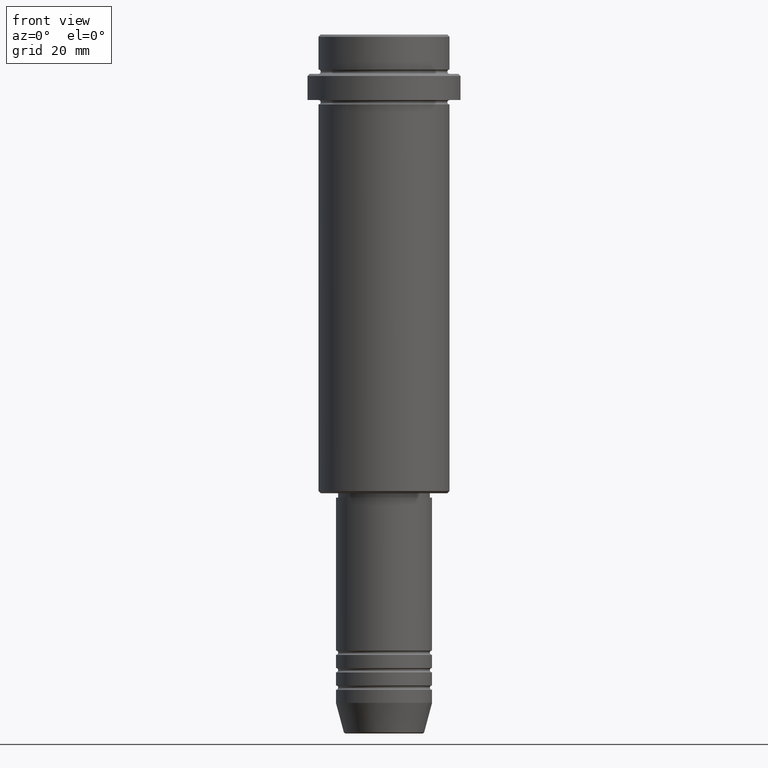
[diagram: clean part render]
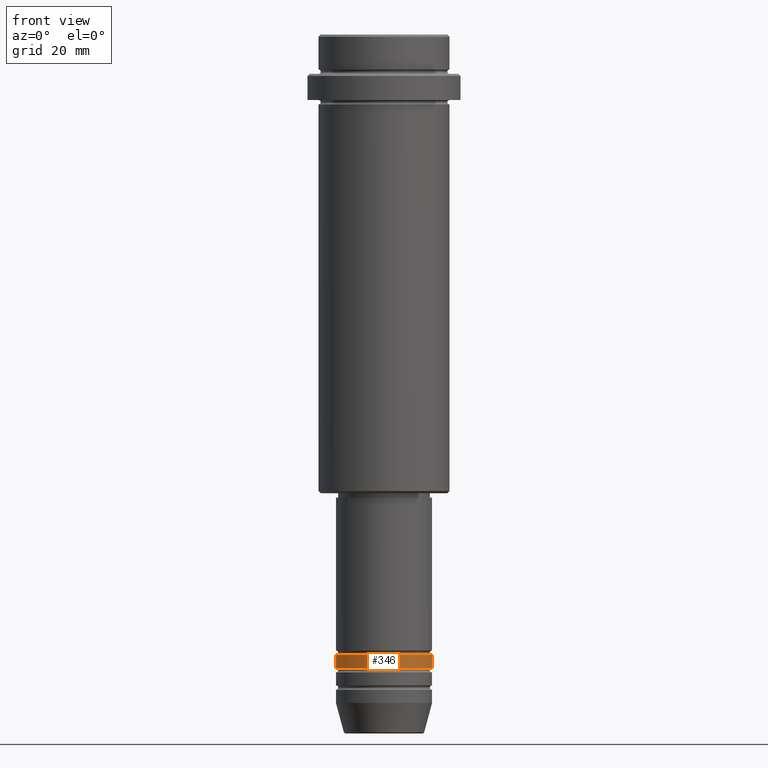
[diagram: same view with one face highlighted and labeled with its STEP entity id]
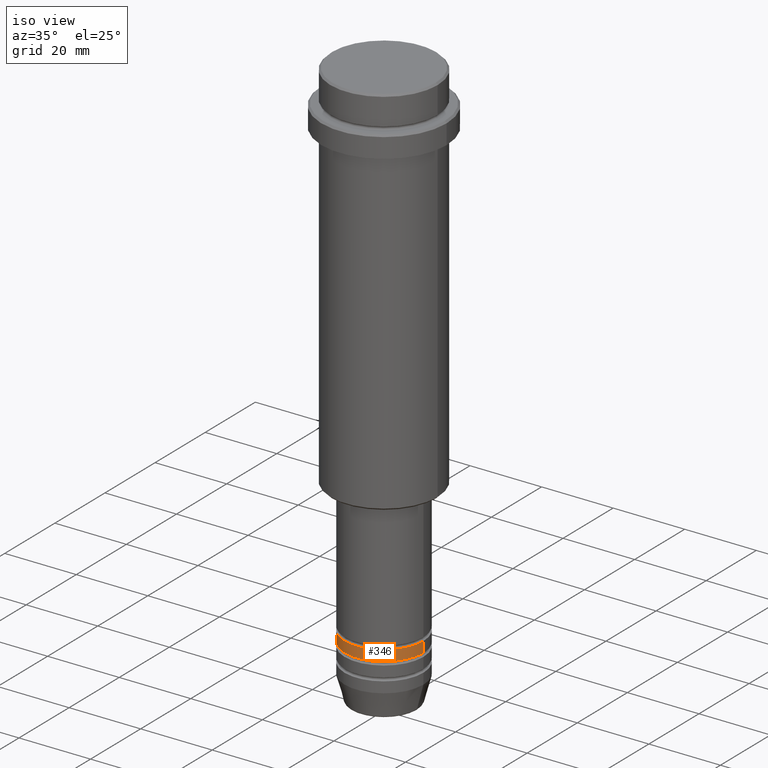
[diagram: same view with one face highlighted and labeled with its STEP entity id]
A machine part, front view. The second image highlights one B-rep face of the part: STEP entity #346.
A second angle (iso view) of the same face is appended — the face is thin or edge-on in the first view.
In plain terms, the highlighted cylindrical surface (partial cylindrical patch) has radius 11 mm, axis along (-0, -0, 1).
Its self-contained STEP definition (entity closure, byte-faithful):
#16 = DIRECTION ( 'NONE',  ( -0.000000000000000000, -0.000000000000000000, 1.000000000000000000 ) ) ;
#18 = CARTESIAN_POINT ( 'NONE',  ( 0.000000000000000000, 0.000000000000000000, -144.9999999999999147 ) ) ;
#20 = DIRECTION ( 'NONE',  ( 1.000000000000000000, 0.000000000000000000, 0.000000000000000000 ) ) ;
#31 = AXIS2_PLACEMENT_3D ( 'NONE', #18, #16, #20 ) ;
#36 = DIRECTION ( 'NONE',  ( 1.000000000000000000, 0.000000000000000000, 0.000000000000000000 ) ) ;
#169 = CARTESIAN_POINT ( 'NONE',  ( 0.000000000000000000, 0.000000000000000000, -141.9999999999999147 ) ) ;
#218 = VECTOR ( 'NONE', #729, 1000.000000000000000 ) ;
#220 = CARTESIAN_POINT ( 'NONE',  ( -11.00000000000000000, 1.347111479062088405E-15, -141.9999999999999147 ) ) ;
#247 = DIRECTION ( 'NONE',  ( -0.000000000000000000, -0.000000000000000000, 1.000000000000000000 ) ) ;
#269 = DIRECTION ( 'NONE',  ( 1.000000000000000000, 0.000000000000000000, 0.000000000000000000 ) ) ;
#301 = CARTESIAN_POINT ( 'NONE',  ( 11.00000000000000000, 0.000000000000000000, -144.9999999999999147 ) ) ;
#341 = EDGE_CURVE ( 'NONE', #1416, #688, #375, .T. ) ;
#346 = ADVANCED_FACE ( 'NONE', ( #834 ), #1037, .T. ) ;
#357 = CARTESIAN_POINT ( 'NONE',  ( -11.00000000000000000, 1.347111479062088405E-15, 0.000000000000000000 ) ) ;
#375 = LINE ( 'NONE', #952, #832 ) ;
#500 = CARTESIAN_POINT ( 'NONE',  ( 0.000000000000000000, 0.000000000000000000, 0.000000000000000000 ) ) ;
#501 = ORIENTED_EDGE ( 'NONE', *, *, #525, .F. ) ;
#525 = EDGE_CURVE ( 'NONE', #865, #1059, #1365, .T. ) ;
#629 = CARTESIAN_POINT ( 'NONE',  ( -11.00000000000000000, 1.347111479062088405E-15, -144.9999999999999147 ) ) ;
#688 = VERTEX_POINT ( 'NONE', #1135 ) ;
#729 = DIRECTION ( 'NONE',  ( -0.000000000000000000, -0.000000000000000000, 1.000000000000000000 ) ) ;
#760 = ORIENTED_EDGE ( 'NONE', *, *, #1400, .F. ) ;
#796 = EDGE_LOOP ( 'NONE', ( #501, #1314, #1056, #760 ) ) ;
#832 = VECTOR ( 'NONE', #938, 1000.000000000000000 ) ;
#834 = FACE_OUTER_BOUND ( 'NONE', #796, .T. ) ;
#865 = VERTEX_POINT ( 'NONE', #629 ) ;
#882 = AXIS2_PLACEMENT_3D ( 'NONE', #500, #247, #36 ) ;
#909 = AXIS2_PLACEMENT_3D ( 'NONE', #169, #1260, #269 ) ;
#938 = DIRECTION ( 'NONE',  ( -0.000000000000000000, -0.000000000000000000, 1.000000000000000000 ) ) ;
#952 = CARTESIAN_POINT ( 'NONE',  ( 11.00000000000000000, 0.000000000000000000, 0.000000000000000000 ) ) ;
#972 = EDGE_CURVE ( 'NONE', #865, #1416, #1157, .T. ) ;
#1037 = CYLINDRICAL_SURFACE ( 'NONE', #882, 11.00000000000000000 ) ;
#1056 = ORIENTED_EDGE ( 'NONE', *, *, #341, .T. ) ;
#1059 = VERTEX_POINT ( 'NONE', #220 ) ;
#1135 = CARTESIAN_POINT ( 'NONE',  ( 11.00000000000000000, 0.000000000000000000, -141.9999999999999147 ) ) ;
#1157 = CIRCLE ( 'NONE', #31, 11.00000000000000000 ) ;
#1260 = DIRECTION ( 'NONE',  ( -0.000000000000000000, -0.000000000000000000, 1.000000000000000000 ) ) ;
#1314 = ORIENTED_EDGE ( 'NONE', *, *, #972, .T. ) ;
#1365 = LINE ( 'NONE', #357, #218 ) ;
#1385 = CIRCLE ( 'NONE', #909, 11.00000000000000000 ) ;
#1400 = EDGE_CURVE ( 'NONE', #1059, #688, #1385, .T. ) ;
#1416 = VERTEX_POINT ( 'NONE', #301 ) ;